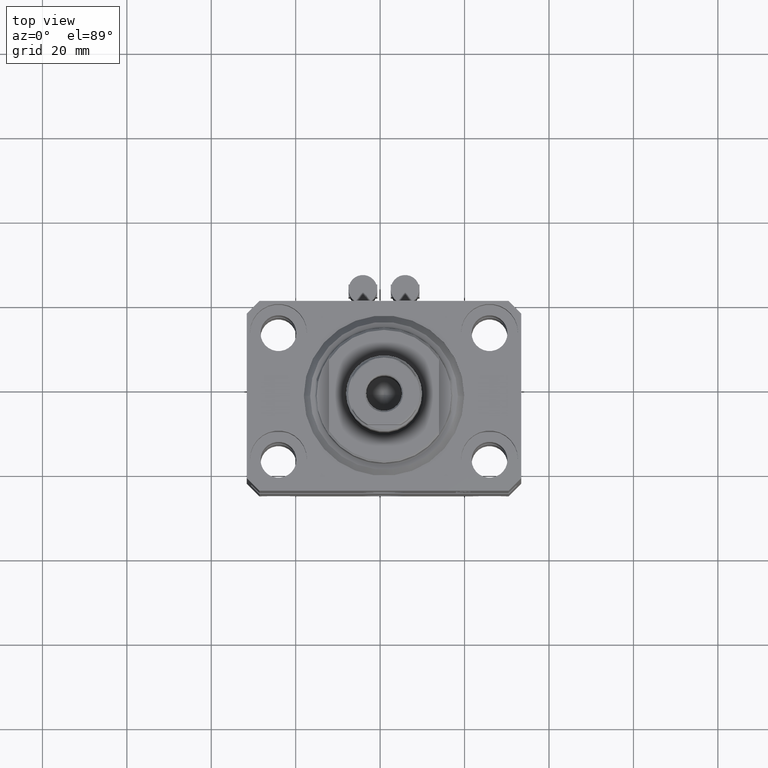
[diagram: clean part render]
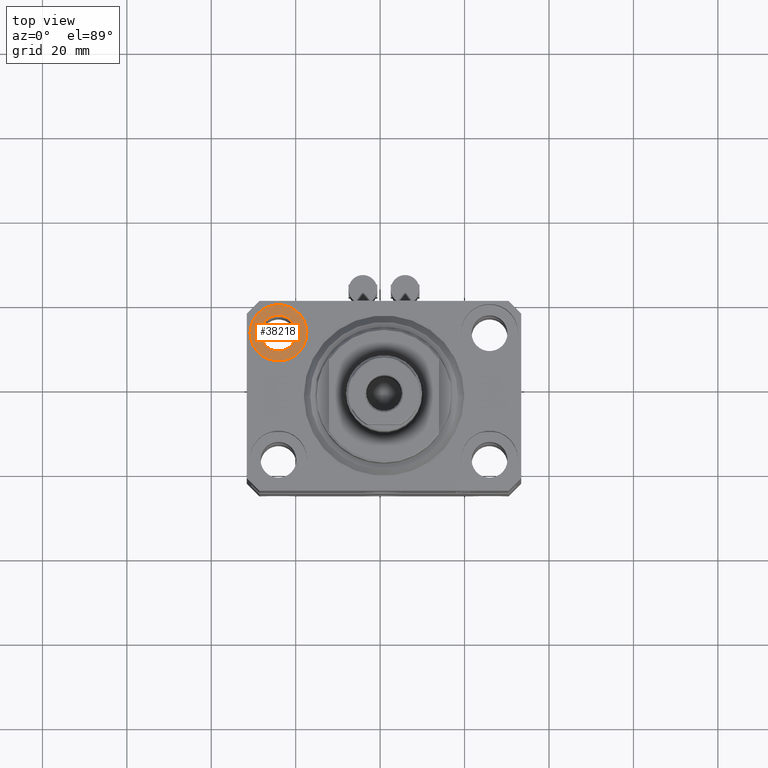
[diagram: same view with one face highlighted and labeled with its STEP entity id]
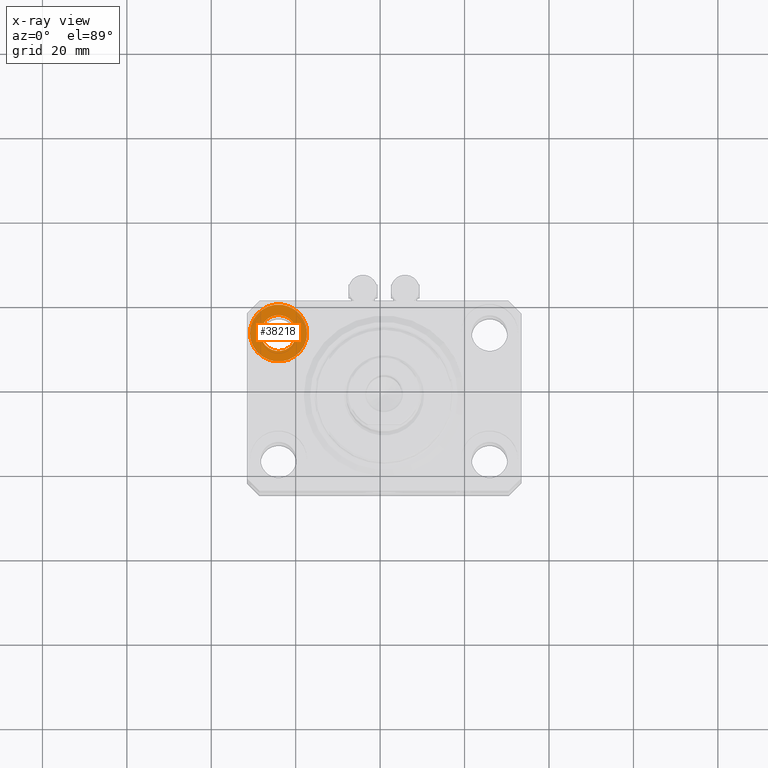
[diagram: x-ray of the same camera — body ghosted, the highlighted face saturated]
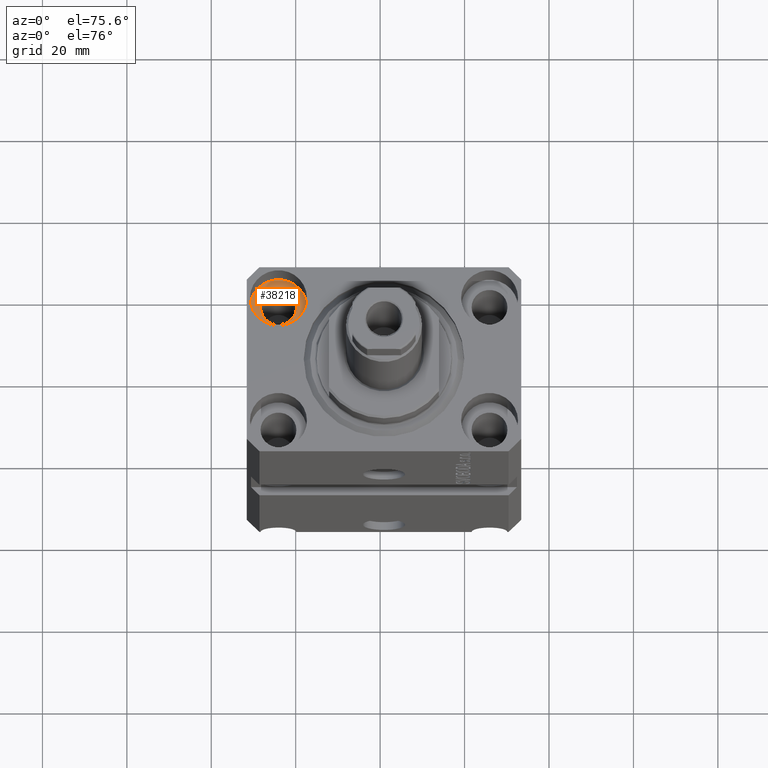
[diagram: same view with one face highlighted and labeled with its STEP entity id]
A machine part, top view. The second image highlights one B-rep face of the part: STEP entity #38218.
The next image is the same camera in x-ray: the body ghosted, the highlighted face saturated — about 0% of this face is hidden behind the body in this view.
A second angle (auxiliary view) of the same face is appended — the face is thin or edge-on in the first view.
In plain terms, the highlighted planar face has unit normal (0, 0, 1).
Its self-contained STEP definition (entity closure, byte-faithful):
#217 = CARTESIAN_POINT ( 'NONE',  ( -25.00000000000000355, 15.00000000000000000, -9.000000000000000000 ) ) ;
#1413 = CIRCLE ( 'NONE', #38720, 6.750000000022533087 ) ;
#2303 = FACE_OUTER_BOUND ( 'NONE', #23982, .T. ) ;
#2874 = EDGE_CURVE ( 'NONE', #34963, #38922, #31249, .T. ) ;
#4298 = DIRECTION ( 'NONE',  ( 0.000000000000000000, 0.000000000000000000, 1.000000000000000000 ) ) ;
#6326 = EDGE_CURVE ( 'NONE', #12243, #8199, #25009, .T. ) ;
#7494 = CARTESIAN_POINT ( 'NONE',  ( -29.25000000002254197, 15.00000000000000000, -9.000000000000000000 ) ) ;
#8199 = VERTEX_POINT ( 'NONE', #7494 ) ;
#8506 = DIRECTION ( 'NONE',  ( 0.000000000000000000, 0.000000000000000000, 1.000000000000000000 ) ) ;
#10865 = DIRECTION ( 'NONE',  ( 1.000000000000000000, 0.000000000000000000, 0.000000000000000000 ) ) ;
#12243 = VERTEX_POINT ( 'NONE', #30890 ) ;
#12905 = DIRECTION ( 'NONE',  ( 1.000000000000000000, 0.000000000000000000, 0.000000000000000000 ) ) ;
#16965 = AXIS2_PLACEMENT_3D ( 'NONE', #34718, #17973, #10865 ) ;
#17140 = ORIENTED_EDGE ( 'NONE', *, *, #37935, .T. ) ;
#17973 = DIRECTION ( 'NONE',  ( 0.000000000000000000, 0.000000000000000000, 1.000000000000000000 ) ) ;
#18539 = DIRECTION ( 'NONE',  ( 1.000000000000000000, 0.000000000000000000, 0.000000000000000000 ) ) ;
#22016 = ORIENTED_EDGE ( 'NONE', *, *, #2874, .T. ) ;
#22452 = AXIS2_PLACEMENT_3D ( 'NONE', #32042, #4298, #42354 ) ;
#23583 = CIRCLE ( 'NONE', #25761, 4.250000000022537527 ) ;
#23982 = EDGE_LOOP ( 'NONE', ( #22016, #17140 ) ) ;
#25009 = CIRCLE ( 'NONE', #16965, 4.250000000022537527 ) ;
#25761 = AXIS2_PLACEMENT_3D ( 'NONE', #217, #28407, #18539 ) ;
#25989 = CARTESIAN_POINT ( 'NONE',  ( -31.75000000002253842, 15.00000000000000000, -9.000000000000000000 ) ) ;
#26442 = DIRECTION ( 'NONE',  ( 0.000000000000000000, 0.000000000000000000, 1.000000000000000000 ) ) ;
#28407 = DIRECTION ( 'NONE',  ( 0.000000000000000000, 0.000000000000000000, 1.000000000000000000 ) ) ;
#28525 = AXIS2_PLACEMENT_3D ( 'NONE', #40824, #8506, #36249 ) ;
#28611 = ORIENTED_EDGE ( 'NONE', *, *, #39612, .F. ) ;
#30329 = CARTESIAN_POINT ( 'NONE',  ( -25.00000000000000355, 15.00000000000000000, -9.000000000000000000 ) ) ;
#30890 = CARTESIAN_POINT ( 'NONE',  ( -20.74999999997746869, 15.00000000000000000, -9.000000000000000000 ) ) ;
#31249 = CIRCLE ( 'NONE', #22452, 6.750000000022533087 ) ;
#32042 = CARTESIAN_POINT ( 'NONE',  ( -25.00000000000000355, 15.00000000000000000, -9.000000000000000000 ) ) ;
#34718 = CARTESIAN_POINT ( 'NONE',  ( -25.00000000000000355, 15.00000000000000000, -9.000000000000000000 ) ) ;
#34963 = VERTEX_POINT ( 'NONE', #39403 ) ;
#36249 = DIRECTION ( 'NONE',  ( 1.000000000000000000, 0.000000000000000000, -0.000000000000000000 ) ) ;
#36698 = PLANE ( 'NONE',  #28525 ) ;
#37935 = EDGE_CURVE ( 'NONE', #38922, #34963, #1413, .T. ) ;
#38218 = ADVANCED_FACE ( 'NONE', ( #43572, #2303 ), #36698, .T. ) ;
#38720 = AXIS2_PLACEMENT_3D ( 'NONE', #30329, #26442, #12905 ) ;
#38922 = VERTEX_POINT ( 'NONE', #25989 ) ;
#39148 = ORIENTED_EDGE ( 'NONE', *, *, #6326, .F. ) ;
#39403 = CARTESIAN_POINT ( 'NONE',  ( -18.24999999997747224, 15.00000000000000000, -9.000000000000000000 ) ) ;
#39612 = EDGE_CURVE ( 'NONE', #8199, #12243, #23583, .T. ) ;
#40824 = CARTESIAN_POINT ( 'NONE',  ( -25.00000000000000355, 15.00000000000000000, -9.000000000000000000 ) ) ;
#42354 = DIRECTION ( 'NONE',  ( 1.000000000000000000, 0.000000000000000000, 0.000000000000000000 ) ) ;
#43572 = FACE_BOUND ( 'NONE', #44767, .T. ) ;
#44767 = EDGE_LOOP ( 'NONE', ( #39148, #28611 ) ) ;